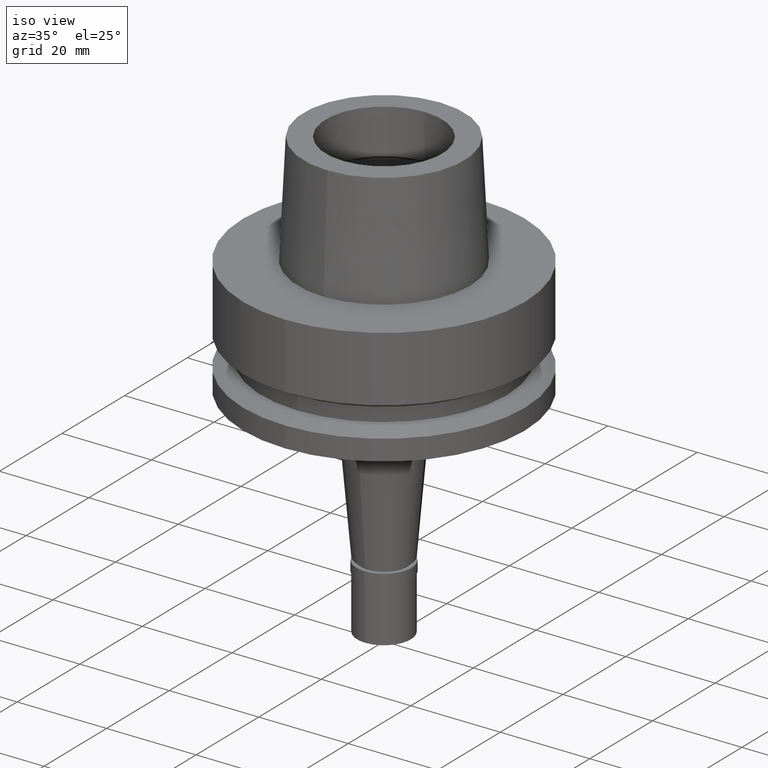
[diagram: clean part render]
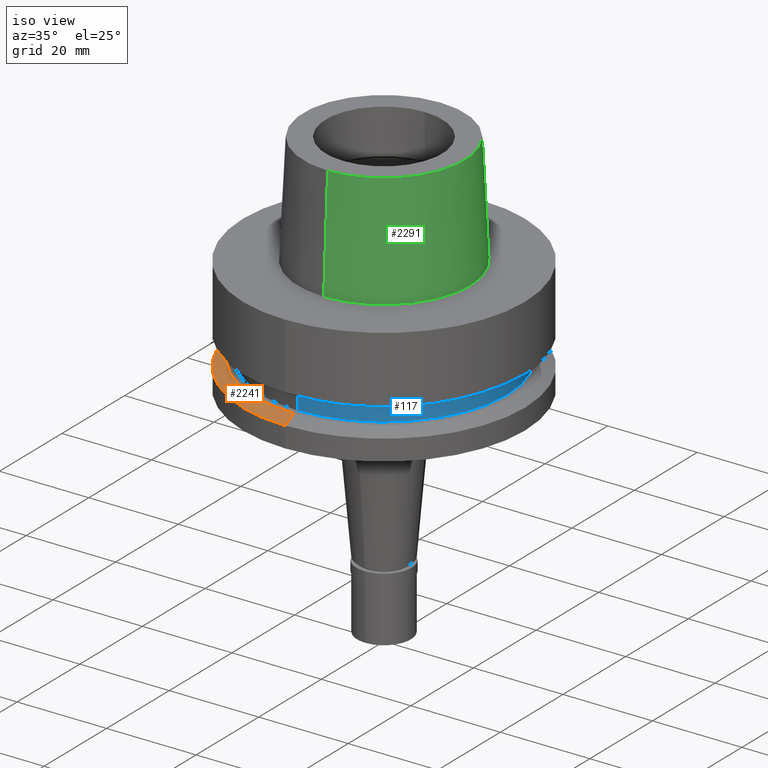
[diagram: same view with three faces highlighted in distinct colors, each labeled with its STEP entity id]
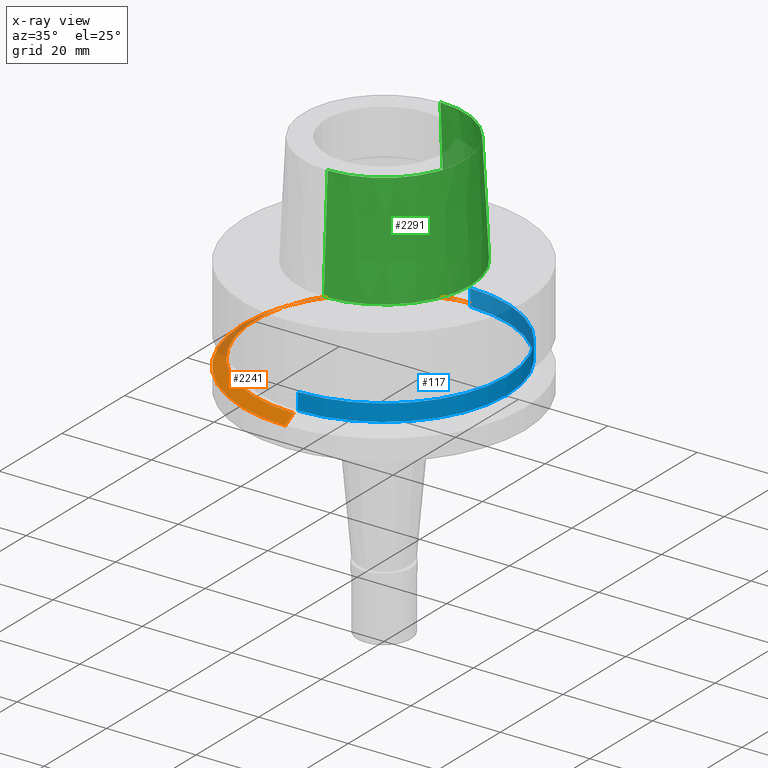
[diagram: x-ray of the same camera — body ghosted, the three highlighted faces saturated]
A machine part, iso view with three faces highlighted in distinct colors.
The next image is the same camera in x-ray (body ghosted, the three faces saturated) — at least one of them is partly hidden behind the body in this view.
Their STEP definitions:

[orange] entity #2241 — the highlighted conical surface has half-angle 60 deg.
#81 = VECTOR ( 'NONE', #1181, 1000.000000000000000 ) ;
#100 = ORIENTED_EDGE ( 'NONE', *, *, #308, .T. ) ;
#158 = FACE_OUTER_BOUND ( 'NONE', #2694, .T. ) ;
#173 = AXIS2_PLACEMENT_3D ( 'NONE', #1849, #586, #1840 ) ;
#185 = VERTEX_POINT ( 'NONE', #1873 ) ;
#306 = LINE ( 'NONE', #540, #81 ) ;
#308 = EDGE_CURVE ( 'NONE', #1265, #1664, #1670, .T. ) ;
#479 = AXIS2_PLACEMENT_3D ( 'NONE', #1992, #1765, #2627 ) ;
#521 = VERTEX_POINT ( 'NONE', #1956 ) ;
#540 = CARTESIAN_POINT ( 'NONE',  ( 0.0000000000000000000, 28.89759526419000224, -19.87500000000000000 ) ) ;
#571 = LINE ( 'NONE', #2399, #1314 ) ;
#586 = DIRECTION ( 'NONE',  ( 0.0000000000000000000, 0.0000000000000000000, -1.000000000000000000 ) ) ;
#1120 = EDGE_CURVE ( 'NONE', #1265, #521, #571, .T. ) ;
#1125 = CIRCLE ( 'NONE', #2666, 31.50000000000000000 ) ;
#1145 = ORIENTED_EDGE ( 'NONE', *, *, #1644, .F. ) ;
#1181 = DIRECTION ( 'NONE',  ( 0.0000000000000000000, 0.8660254037843856390, -0.5000000000000918154 ) ) ;
#1204 = CARTESIAN_POINT ( 'NONE',  ( 0.0000000000000000000, -28.89759526419000224, -19.87500000000000000 ) ) ;
#1265 = VERTEX_POINT ( 'NONE', #1204 ) ;
#1314 = VECTOR ( 'NONE', #2231, 1000.000000000000000 ) ;
#1374 = CARTESIAN_POINT ( 'NONE',  ( 0.0000000000000000000, 0.0000000000000000000, -21.37749907476000288 ) ) ;
#1466 = CONICAL_SURFACE ( 'NONE', #173, 30.19879763209999979, 1.047197551196400456 ) ;
#1595 = CARTESIAN_POINT ( 'NONE',  ( 0.0000000000000000000, 28.89759526419000224, -19.87500000000000000 ) ) ;
#1641 = EDGE_CURVE ( 'NONE', #1664, #185, #306, .T. ) ;
#1644 = EDGE_CURVE ( 'NONE', #521, #185, #1125, .T. ) ;
#1664 = VERTEX_POINT ( 'NONE', #1595 ) ;
#1670 = CIRCLE ( 'NONE', #479, 28.89759526419000224 ) ;
#1765 = DIRECTION ( 'NONE',  ( 0.0000000000000000000, 0.0000000000000000000, -1.000000000000000000 ) ) ;
#1840 = DIRECTION ( 'NONE',  ( 0.0000000000000000000, -1.000000000000000000, 0.0000000000000000000 ) ) ;
#1849 = CARTESIAN_POINT ( 'NONE',  ( 0.0000000000000000000, 0.0000000000000000000, -20.62624953738000144 ) ) ;
#1873 = CARTESIAN_POINT ( 'NONE',  ( 0.0000000000000000000, 31.50000000000000000, -21.37749907476000288 ) ) ;
#1874 = ORIENTED_EDGE ( 'NONE', *, *, #1641, .T. ) ;
#1956 = CARTESIAN_POINT ( 'NONE',  ( 0.0000000000000000000, -31.50000000000000000, -21.37749907476000288 ) ) ;
#1992 = CARTESIAN_POINT ( 'NONE',  ( 0.0000000000000000000, 0.0000000000000000000, -19.87500000000000000 ) ) ;
#2231 = DIRECTION ( 'NONE',  ( 0.0000000000000000000, -0.8660254037843856390, -0.5000000000000918154 ) ) ;
#2241 = ADVANCED_FACE ( 'NONE', ( #158 ), #1466, .T. ) ;
#2250 = ORIENTED_EDGE ( 'NONE', *, *, #1120, .F. ) ;
#2399 = CARTESIAN_POINT ( 'NONE',  ( 0.0000000000000000000, -28.89759526419000224, -19.87500000000000000 ) ) ;
#2593 = DIRECTION ( 'NONE',  ( 0.0000000000000000000, -1.000000000000000000, 0.0000000000000000000 ) ) ;
#2623 = DIRECTION ( 'NONE',  ( 0.0000000000000000000, 0.0000000000000000000, -1.000000000000000000 ) ) ;
#2627 = DIRECTION ( 'NONE',  ( 0.0000000000000000000, -1.000000000000000000, 0.0000000000000000000 ) ) ;
#2666 = AXIS2_PLACEMENT_3D ( 'NONE', #1374, #2623, #2593 ) ;
#2694 = EDGE_LOOP ( 'NONE', ( #1145, #2250, #100, #1874 ) ) ;

[blue] entity #117 — the highlighted cylindrical surface (partial cylindrical patch) has radius 27.5 mm, axis along (0, 0, -1).
#56 = EDGE_LOOP ( 'NONE', ( #1970, #2070, #842, #2512 ) ) ;
#116 = DIRECTION ( 'NONE',  ( 0.0000000000000000000, -1.000000000000000000, 0.0000000000000000000 ) ) ;
#117 = ADVANCED_FACE ( 'NONE', ( #1928 ), #1901, .T. ) ;
#146 = CARTESIAN_POINT ( 'NONE',  ( 0.0000000000000000000, -27.50000000000000000, -16.12500000000000000 ) ) ;
#239 = AXIS2_PLACEMENT_3D ( 'NONE', #1775, #2607, #727 ) ;
#339 = CARTESIAN_POINT ( 'NONE',  ( 0.0000000000000000000, 27.50000000000000000, -16.12500000000000000 ) ) ;
#453 = EDGE_CURVE ( 'NONE', #1045, #781, #1581, .T. ) ;
#659 = CARTESIAN_POINT ( 'NONE',  ( 0.0000000000000000000, -27.50000000000000000, -16.12500000000000000 ) ) ;
#667 = DIRECTION ( 'NONE',  ( 0.0000000000000000000, 0.0000000000000000000, -1.000000000000000000 ) ) ;
#727 = DIRECTION ( 'NONE',  ( 0.0000000000000000000, 1.000000000000000000, 0.0000000000000000000 ) ) ;
#781 = VERTEX_POINT ( 'NONE', #1091 ) ;
#842 = ORIENTED_EDGE ( 'NONE', *, *, #1291, .T. ) ;
#873 = CARTESIAN_POINT ( 'NONE',  ( 0.0000000000000000000, 27.50000000000000000, -16.12500000000000000 ) ) ;
#891 = CARTESIAN_POINT ( 'NONE',  ( 0.0000000000000000000, 27.50000000000000000, -19.87500000000000000 ) ) ;
#1045 = VERTEX_POINT ( 'NONE', #146 ) ;
#1071 = CARTESIAN_POINT ( 'NONE',  ( 0.0000000000000000000, 1.589591545292999879E-14, 29.80000000000000071 ) ) ;
#1091 = CARTESIAN_POINT ( 'NONE',  ( 0.0000000000000000000, -27.50000000000000000, -19.87500000000000000 ) ) ;
#1214 = CIRCLE ( 'NONE', #2302, 27.50000000000000000 ) ;
#1237 = CARTESIAN_POINT ( 'NONE',  ( 0.0000000000000000000, 1.589591545292999879E-14, -19.87500000000000000 ) ) ;
#1291 = EDGE_CURVE ( 'NONE', #781, #1932, #1214, .T. ) ;
#1449 = VECTOR ( 'NONE', #2107, 1000.000000000000000 ) ;
#1498 = DIRECTION ( 'NONE',  ( 0.0000000000000000000, -1.000000000000000000, 0.0000000000000000000 ) ) ;
#1581 = LINE ( 'NONE', #659, #1449 ) ;
#1675 = DIRECTION ( 'NONE',  ( 0.0000000000000000000, 0.0000000000000000000, 1.000000000000000000 ) ) ;
#1719 = EDGE_CURVE ( 'NONE', #2299, #1045, #2122, .T. ) ;
#1775 = CARTESIAN_POINT ( 'NONE',  ( 0.0000000000000000000, 1.589591545292999879E-14, -16.12500000000000000 ) ) ;
#1808 = AXIS2_PLACEMENT_3D ( 'NONE', #1071, #667, #1498 ) ;
#1901 = CYLINDRICAL_SURFACE ( 'NONE', #1808, 27.50000000000000000 ) ;
#1928 = FACE_OUTER_BOUND ( 'NONE', #56, .T. ) ;
#1932 = VERTEX_POINT ( 'NONE', #891 ) ;
#1970 = ORIENTED_EDGE ( 'NONE', *, *, #1719, .T. ) ;
#2070 = ORIENTED_EDGE ( 'NONE', *, *, #453, .T. ) ;
#2107 = DIRECTION ( 'NONE',  ( 0.0000000000000000000, 0.0000000000000000000, -1.000000000000000000 ) ) ;
#2122 = CIRCLE ( 'NONE', #239, 27.50000000000000000 ) ;
#2264 = VECTOR ( 'NONE', #2342, 1000.000000000000000 ) ;
#2299 = VERTEX_POINT ( 'NONE', #339 ) ;
#2302 = AXIS2_PLACEMENT_3D ( 'NONE', #1237, #1675, #116 ) ;
#2342 = DIRECTION ( 'NONE',  ( 0.0000000000000000000, 0.0000000000000000000, -1.000000000000000000 ) ) ;
#2512 = ORIENTED_EDGE ( 'NONE', *, *, #2584, .F. ) ;
#2584 = EDGE_CURVE ( 'NONE', #2299, #1932, #2595, .T. ) ;
#2595 = LINE ( 'NONE', #873, #2264 ) ;
#2607 = DIRECTION ( 'NONE',  ( 0.0000000000000000000, 0.0000000000000000000, -1.000000000000000000 ) ) ;

[green] entity #2291 — the highlighted conical surface has half-angle 2.862 deg.
#61 = LINE ( 'NONE', #1705, #290 ) ;
#126 = DIRECTION ( 'NONE',  ( 0.0000000000000000000, -1.000000000000000000, 0.0000000000000000000 ) ) ;
#174 = VERTEX_POINT ( 'NONE', #1682 ) ;
#269 = VERTEX_POINT ( 'NONE', #1361 ) ;
#290 = VECTOR ( 'NONE', #1516, 999.9999999999998863 ) ;
#313 = CARTESIAN_POINT ( 'NONE',  ( 0.0000000000000000000, 18.00000182882000033, 25.00000000000000000 ) ) ;
#387 = DIRECTION ( 'NONE',  ( 0.0000000000000000000, 1.000000000000000000, 0.0000000000000000000 ) ) ;
#441 = CARTESIAN_POINT ( 'NONE',  ( 0.0000000000000000000, -18.00000182882000033, 25.00000000000000000 ) ) ;
#507 = VECTOR ( 'NONE', #1349, 999.9999999999998863 ) ;
#552 = DIRECTION ( 'NONE',  ( 0.0000000000000000000, 0.0000000000000000000, -1.000000000000000000 ) ) ;
#558 = DIRECTION ( 'NONE',  ( 0.0000000000000000000, 0.0000000000000000000, -1.000000000000000000 ) ) ;
#636 = ORIENTED_EDGE ( 'NONE', *, *, #1254, .T. ) ;
#697 = LINE ( 'NONE', #313, #507 ) ;
#700 = VERTEX_POINT ( 'NONE', #1458 ) ;
#761 = ORIENTED_EDGE ( 'NONE', *, *, #1399, .T. ) ;
#846 = AXIS2_PLACEMENT_3D ( 'NONE', #2247, #1566, #2042 ) ;
#866 = CONICAL_SURFACE ( 'NONE', #1511, 18.62500068580999724, 0.04995830450907576964 ) ;
#886 = ORIENTED_EDGE ( 'NONE', *, *, #1143, .T. ) ;
#1143 = EDGE_CURVE ( 'NONE', #269, #700, #1978, .T. ) ;
#1254 = EDGE_CURVE ( 'NONE', #174, #2374, #1342, .T. ) ;
#1342 = CIRCLE ( 'NONE', #2393, 18.00000182882000033 ) ;
#1349 = DIRECTION ( 'NONE',  ( 0.0000000000000000000, 0.04993752584486958745, -0.9987523434327917338 ) ) ;
#1361 = CARTESIAN_POINT ( 'NONE',  ( 0.0000000000000000000, -19.24999954280000125, 2.273736754432000254E-13 ) ) ;
#1399 = EDGE_CURVE ( 'NONE', #2374, #269, #61, .T. ) ;
#1458 = CARTESIAN_POINT ( 'NONE',  ( 0.0000000000000000000, 19.24999954280000125, 0.0000000000000000000 ) ) ;
#1511 = AXIS2_PLACEMENT_3D ( 'NONE', #2404, #558, #126 ) ;
#1516 = DIRECTION ( 'NONE',  ( 0.0000000000000000000, -0.04993752584486958745, -0.9987523434327917338 ) ) ;
#1566 = DIRECTION ( 'NONE',  ( 0.0000000000000000000, 0.0000000000000000000, 1.000000000000000000 ) ) ;
#1682 = CARTESIAN_POINT ( 'NONE',  ( 0.0000000000000000000, 18.00000182882000033, 25.00000000000000000 ) ) ;
#1705 = CARTESIAN_POINT ( 'NONE',  ( 0.0000000000000000000, -18.00000182882000033, 25.00000000000000000 ) ) ;
#1828 = EDGE_LOOP ( 'NONE', ( #636, #761, #886, #2239 ) ) ;
#1978 = CIRCLE ( 'NONE', #846, 19.24999954280000125 ) ;
#2027 = EDGE_CURVE ( 'NONE', #174, #700, #697, .T. ) ;
#2042 = DIRECTION ( 'NONE',  ( 0.0000000000000000000, -1.000000000000000000, 0.0000000000000000000 ) ) ;
#2044 = FACE_OUTER_BOUND ( 'NONE', #1828, .T. ) ;
#2239 = ORIENTED_EDGE ( 'NONE', *, *, #2027, .F. ) ;
#2247 = CARTESIAN_POINT ( 'NONE',  ( 0.0000000000000000000, 1.377727649040999975E-14, 2.273736754432000254E-13 ) ) ;
#2291 = ADVANCED_FACE ( 'NONE', ( #2044 ), #866, .T. ) ;
#2374 = VERTEX_POINT ( 'NONE', #441 ) ;
#2393 = AXIS2_PLACEMENT_3D ( 'NONE', #2639, #552, #387 ) ;
#2404 = CARTESIAN_POINT ( 'NONE',  ( 0.0000000000000000000, 1.377727649040999975E-14, 12.50000000000000000 ) ) ;
#2639 = CARTESIAN_POINT ( 'NONE',  ( 0.0000000000000000000, 1.377727649040999975E-14, 25.00000000000000000 ) ) ;